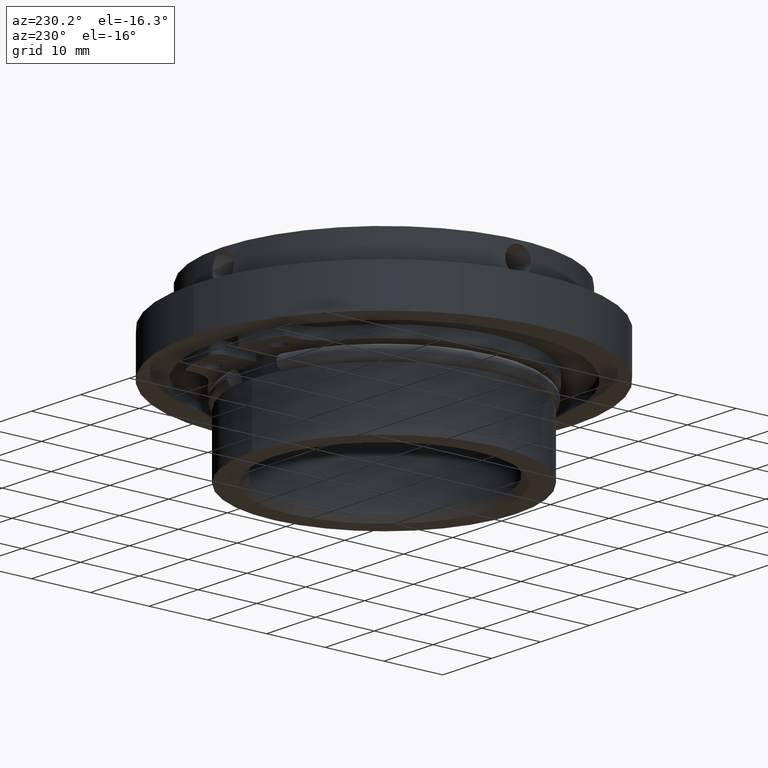
[diagram: clean part render]
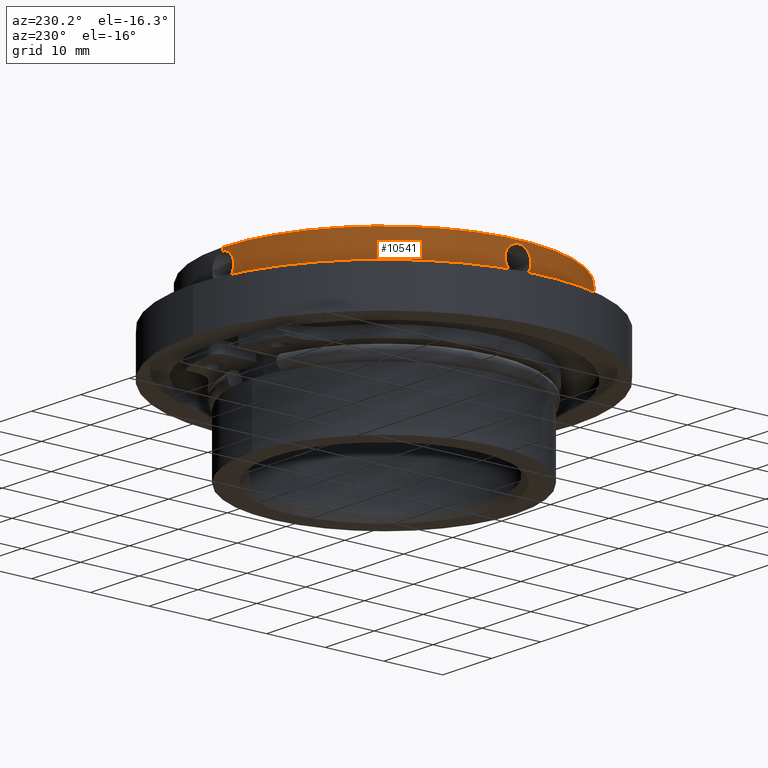
[diagram: same view with one face highlighted and labeled with its STEP entity id]
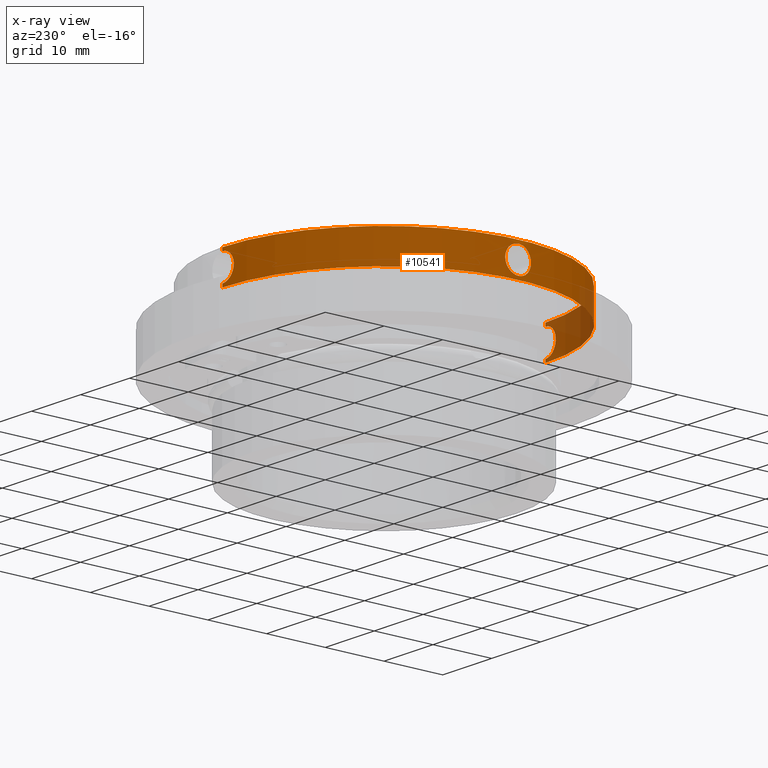
[diagram: x-ray of the same camera — body ghosted, the highlighted face saturated]
A machine part, auxiliary view. The second image highlights one B-rep face of the part: STEP entity #10541.
The next image is the same camera in x-ray: the body ghosted, the highlighted face saturated — about 12% of this face is hidden behind the body in this view.
In plain terms, the highlighted cylindrical surface (partial cylindrical patch) has radius 27.5 mm, axis along (-0, -0, 1).
Its self-contained STEP definition (entity closure, byte-faithful):
#78 = CARTESIAN_POINT ( 'NONE',  ( -27.46760607206279303, 1.339752003900576582, 12.50091533937346178 ) ) ;
#205 = EDGE_CURVE ( 'NONE', #15126, #2915, #16627, .T. ) ;
#735 = CARTESIAN_POINT ( 'NONE',  ( -1.102211121587606701, 27.47816321157248609, 8.840602214783354285 ) ) ;
#791 = CARTESIAN_POINT ( 'NONE',  ( -2.087956503690278520, 27.42067638091420534, 11.45797137967987744 ) ) ;
#849 = VECTOR ( 'NONE', #949, 1000.000000000000000 ) ;
#868 = CARTESIAN_POINT ( 'NONE',  ( -27.50000411988308358, -0.1427642548176980275, 8.549948501458123573 ) ) ;
#949 = DIRECTION ( 'NONE',  ( -0.000000000000000000, -1.836970198721029441E-16, 1.000000000000000000 ) ) ;
#1002 = CARTESIAN_POINT ( 'NONE',  ( -0.5700693947728147082, -27.49445680189563035, 12.87977522340081471 ) ) ;
#1021 = CYLINDRICAL_SURFACE ( 'NONE', #6357, 27.50000000000000355 ) ;
#1055 = CARTESIAN_POINT ( 'NONE',  ( -27.42071439213125217, 2.087460144524090566, 10.04055943237065129 ) ) ;
#1231 = CARTESIAN_POINT ( 'NONE',  ( -2.088078921349331818, -27.42066711140455126, 10.04236781854133298 ) ) ;
#1263 = CARTESIAN_POINT ( 'NONE',  ( -27.43289219616113783, -1.923149037076269607, 11.85616801572842149 ) ) ;
#1381 = CARTESIAN_POINT ( 'NONE',  ( -27.41298692999574982, -2.186079832941547618, 11.03631544758494876 ) ) ;
#1499 = CARTESIAN_POINT ( 'NONE',  ( -27.42070761496685449, -2.087537547147495953, 11.45902359883625365 ) ) ;
#1524 = CARTESIAN_POINT ( 'NONE',  ( -1.455335805502531832, -27.46165163692802125, 9.093924413810746898 ) ) ;
#1643 = VERTEX_POINT ( 'NONE', #4604 ) ;
#1672 = CARTESIAN_POINT ( 'NONE',  ( -27.43384442769084330, 1.908056495231678307, 11.85462775308173278 ) ) ;
#1798 = CARTESIAN_POINT ( 'NONE',  ( -27.41185874762965824, 2.199999999999902034, 10.74999999999999112 ) ) ;
#1923 = DIRECTION ( 'NONE',  ( -0.000000000000000000, -1.836970198721029441E-16, 1.000000000000000000 ) ) ;
#1924 = CARTESIAN_POINT ( 'NONE',  ( -1.922668897727070947, 27.43292634360357596, 9.642990827726121594 ) ) ;
#2105 = CARTESIAN_POINT ( 'NONE',  ( 0.000000000000000000, -4.959819536546779811E-15, 13.49999999999999822 ) ) ;
#2138 = ORIENTED_EDGE ( 'NONE', *, *, #5385, .F. ) ;
#2166 = CARTESIAN_POINT ( 'NONE',  ( -1.342061094036092417, 27.46749150623850966, 12.49911603992596554 ) ) ;
#2196 = CARTESIAN_POINT ( 'NONE',  ( -27.45023331888924290, 1.656809966927427658, 9.295502150329141955 ) ) ;
#2258 = CARTESIAN_POINT ( 'NONE',  ( 0.000000000000000000, -27.50000000000000711, 7.999999999999992895 ) ) ;
#2355 = ORIENTED_EDGE ( 'NONE', *, *, #9867, .F. ) ;
#2366 = CARTESIAN_POINT ( 'NONE',  ( -27.41185874762966179, 2.199999999999902478, 10.60457834185735670 ) ) ;
#2375 = CARTESIAN_POINT ( 'NONE',  ( -1.976416453588713873, -27.42894182432150529, 11.72700398450496273 ) ) ;
#2437 = CARTESIAN_POINT ( 'NONE',  ( -1.178873736762280042E-23, -27.50000000000000711, 12.94999999999998508 ) ) ;
#2540 = CARTESIAN_POINT ( 'NONE',  ( -27.44443409722021698, -1.749117100696933047, 9.407940309217440955 ) ) ;
#2550 = CARTESIAN_POINT ( 'NONE',  ( -2.130231953129908984, -27.41738302917717718, 10.18196987198513703 ) ) ;
#2567 = VERTEX_POINT ( 'NONE', #16776 ) ;
#2639 = CARTESIAN_POINT ( 'NONE',  ( -27.48296167340937401, -0.9770047894433698810, 12.72641607528670527 ) ) ;
#2691 = CARTESIAN_POINT ( 'NONE',  ( -27.41741881671063652, -2.129775314251042939, 11.32006901540635013 ) ) ;
#2744 = CARTESIAN_POINT ( 'NONE',  ( -27.44441276097223081, -1.759378472819521866, 12.10160882666580306 ) ) ;
#2861 = CARTESIAN_POINT ( 'NONE',  ( -27.49442964040789406, -0.5710637299513807719, 12.87942325830659840 ) ) ;
#2914 = CARTESIAN_POINT ( 'NONE',  ( -27.42892850488798828, 1.976592986737546020, 11.72652599331439305 ) ) ;
#2915 = VERTEX_POINT ( 'NONE', #17189 ) ;
#2970 = CARTESIAN_POINT ( 'NONE',  ( -27.41185874762966534, 2.199999999999902922, 11.04077602094674759 ) ) ;
#3522 = CARTESIAN_POINT ( 'NONE',  ( -27.47898619112024576, 1.107010207776211619, 8.827331620137696788 ) ) ;
#3716 = CARTESIAN_POINT ( 'NONE',  ( -1.977775658333616571, -27.42884361145306471, 9.775720609207821710 ) ) ;
#3767 = CARTESIAN_POINT ( 'NONE',  ( -27.42890037160281125, 1.976990651090154039, 9.774139487694604611 ) ) ;
#3778 = CARTESIAN_POINT ( 'NONE',  ( -1.656027431125970839, -27.45028055965169500, 12.20538238981605872 ) ) ;
#3942 = CARTESIAN_POINT ( 'NONE',  ( -27.47812298843149748, -1.103171243342534025, 8.841189723853160487 ) ) ;
#3979 = CARTESIAN_POINT ( 'NONE',  ( -27.50000918157873997, 0.1434796874053359539, 12.95011476977026099 ) ) ;
#4001 = CARTESIAN_POINT ( 'NONE',  ( 0.000000000000000000, -27.50000000000000711, 8.549999999999984723 ) ) ;
#4038 = CARTESIAN_POINT ( 'NONE',  ( -27.49886387191065040, 0.2868125127088385073, 12.93592886608588444 ) ) ;
#4125 = B_SPLINE_CURVE_WITH_KNOTS ( 'NONE', 3,
 ( #10161, #11477, #12695, #14164, #9979, #13975, #735, #4681, #6185, #8865, #1924, #6123, #15499, #4798, #14226, #15557, #791, #5931, #12762, #4614, #14037, #10227, #2166, #11582, #15380, #7276, #11343, #5996, #16733, #8682 ),
 .UNSPECIFIED., .F., .F.,
 ( 4, 2, 2, 2, 2, 2, 2, 2, 2, 2, 2, 2, 2, 2, 4 ),
 ( 0.000000000000000000, 0.0004300594246521893859, 0.0008601188493043787717, 0.001290178273956568266, 0.001720237698608757543, 0.002580356547913132629, 0.003440475397217508148, 0.003870534821869693522, 0.004300594246521878029, 0.004730653671174062970, 0.005160713095826247043, 0.005590772520478431984, 0.006020831945130616925, 0.006450891369782801865, 0.006880950794434985938 ),
 .UNSPECIFIED. ) ;
#4151 = CIRCLE ( 'NONE', #4281, 27.50000000000000355 ) ;
#4174 = ORIENTED_EDGE ( 'NONE', *, *, #14646, .T. ) ;
#4194 = CARTESIAN_POINT ( 'NONE',  ( -27.41185874762964048, -2.200000000000097877, 10.74999999999999112 ) ) ;
#4281 = AXIS2_PLACEMENT_3D ( 'NONE', #2105, #1923, #7329 ) ;
#4425 = CARTESIAN_POINT ( 'NONE',  ( -27.45027780006670071, 1.656076841807015532, 12.20533438329140452 ) ) ;
#4604 = CARTESIAN_POINT ( 'NONE',  ( -27.41185874762964048, -2.200000000000097877, 10.74999999999999112 ) ) ;
#4614 = CARTESIAN_POINT ( 'NONE',  ( -1.749540281690237231, 27.44440705808895942, 12.09151116448375873 ) ) ;
#4681 = CARTESIAN_POINT ( 'NONE',  ( -1.341330900993246367, 27.46752908895168588, 9.000285545358247319 ) ) ;
#4762 = CARTESIAN_POINT ( 'NONE',  ( 3.367778697655222096E-15, 27.50000000000000000, 13.50000000000000355 ) ) ;
#4798 = CARTESIAN_POINT ( 'NONE',  ( -2.200051511724993247, 27.41185461344127461, 10.89276396314325446 ) ) ;
#4815 = B_SPLINE_CURVE_WITH_KNOTS ( 'NONE', 3,
 ( #16751, #2366, #15826, #6265, #1055, #3767, #8887, #10248, #2196, #11605, #3522, #15647, #8953, #868, #10308, #14702, #6607, #13421, #3942, #15996, #12121, #9257, #2540, #17456, #6707, #15890, #13307, #7965, #16049, #8074 ),
 .UNSPECIFIED., .F., .F.,
 ( 4, 2, 2, 2, 2, 2, 2, 2, 2, 2, 2, 2, 2, 2, 4 ),
 ( 0.000000000000000000, 0.0004300593894160584783, 0.0008601187788321169566, 0.001290178168248175272, 0.001720237557664233913, 0.002580356336496350544, 0.003440475115328467826, 0.003870534504744525817, 0.004300593894160584241, 0.004730653283576643532, 0.005160712672992701089, 0.005590772062408758646, 0.006020831451824816202, 0.006450890841240874626, 0.006880950230656932183 ),
 .UNSPECIFIED. ) ;
#5012 = CARTESIAN_POINT ( 'NONE',  ( 0.000000000000000000, -27.50000000000000711, 13.49999999999999467 ) ) ;
#5347 = CARTESIAN_POINT ( 'NONE',  ( -27.49121764836407777, 0.7076327328848366349, 12.83807875078104033 ) ) ;
#5385 = EDGE_CURVE ( 'NONE', #1643, #9649, #8381, .T. ) ;
#5931 = CARTESIAN_POINT ( 'NONE',  ( -1.977704944055843406, 27.42884865798026794, 11.72440699402530484 ) ) ;
#5996 = CARTESIAN_POINT ( 'NONE',  ( -0.2894786117956304472, 27.49883800060477768, 12.93560705286438584 ) ) ;
#6123 = CARTESIAN_POINT ( 'NONE',  ( -2.142098664217697568, 27.41666494628081807, 10.17247224262181149 ) ) ;
#6185 = CARTESIAN_POINT ( 'NONE',  ( -1.454499141936519857, 27.46169610655971027, 9.093191162497397784 ) ) ;
#6265 = CARTESIAN_POINT ( 'NONE',  ( -27.41741710150834166, 2.129794901160621645, 10.18032020020438821 ) ) ;
#6357 = AXIS2_PLACEMENT_3D ( 'NONE', #8597, #15169, #11140 ) ;
#6389 = CARTESIAN_POINT ( 'NONE',  ( 0.000000000000000000, -27.50000000000000711, 13.49999999999999467 ) ) ;
#6443 = CARTESIAN_POINT ( 'NONE',  ( -1.910282046220560526, -27.43368732281611244, 9.649335464058960810 ) ) ;
#6498 = EDGE_CURVE ( 'NONE', #15051, #15569, #8995, .T. ) ;
#6512 = FACE_BOUND ( 'NONE', #17071, .T. ) ;
#6531 = VERTEX_POINT ( 'NONE', #2258 ) ;
#6607 = CARTESIAN_POINT ( 'NONE',  ( -27.49120840338270000, -0.7079718730853539199, 8.662043649290762204 ) ) ;
#6707 = CARTESIAN_POINT ( 'NONE',  ( -27.42887653974195672, -1.977320405754187993, 9.774801430572754413 ) ) ;
#6828 = CARTESIAN_POINT ( 'NONE',  ( 0.000000000000000000, -3.949485927250213261E-15, 7.999999999999998224 ) ) ;
#7149 = CARTESIAN_POINT ( 'NONE',  ( -27.44456030013204639, 1.747171887409913138, 12.09472021540494246 ) ) ;
#7261 = B_SPLINE_CURVE_WITH_KNOTS ( 'NONE', 3,
 ( #2437, #17124, #14598, #1002, #7974, #10442, #10615, #3778, #13142, #7918, #2375, #11784, #15951, #9324, #9263, #9140, #14483, #2550, #1231, #3716, #6443, #15836, #17191, #1524, #9474, #9422, #14818, #9588, #17463, #4001 ),
 .UNSPECIFIED., .F., .F.,
 ( 4, 2, 2, 2, 2, 2, 2, 2, 2, 2, 2, 2, 2, 2, 4 ),
 ( 0.006880950794434983336, 0.007310910723435553107, 0.007740870652436122011, 0.008600790510437258951, 0.009030750439437826987, 0.009460710368438395024, 0.009890670297438961325, 0.01032063022643952763, 0.01075059015544009566, 0.01118055008444066196, 0.01161051001344123000, 0.01204046994244179630, 0.01247042987144236434, 0.01290038980044293064, 0.01376030965844406671 ),
 .UNSPECIFIED. ) ;
#7276 = CARTESIAN_POINT ( 'NONE',  ( -0.7086600898671457927, 27.49119092278776577, 12.83772823574753374 ) ) ;
#7329 = DIRECTION ( 'NONE',  ( 0.000000000000000000, -1.000000000000000000, -1.892425610156516629E-16 ) ) ;
#7731 = CARTESIAN_POINT ( 'NONE',  ( 0.000000000000000000, 27.50000000000000000, 8.549999999999995381 ) ) ;
#7802 = EDGE_CURVE ( 'NONE', #15126, #2567, #7261, .T. ) ;
#7918 = CARTESIAN_POINT ( 'NONE',  ( -1.908786674296118813, -27.43379209288012888, 11.85327109933470169 ) ) ;
#7965 = CARTESIAN_POINT ( 'NONE',  ( -27.41302461379641286, -2.185607033293954338, 10.46052132605569795 ) ) ;
#7974 = CARTESIAN_POINT ( 'NONE',  ( -0.7090240329387849094, -27.49117724352910841, 12.83753741178530916 ) ) ;
#8074 = CARTESIAN_POINT ( 'NONE',  ( -27.41185874762964048, -2.200000000000097877, 10.74999999999999112 ) ) ;
#8139 = DIRECTION ( 'NONE',  ( -0.000000000000000000, -1.836970198721029441E-16, 1.000000000000000000 ) ) ;
#8202 = FACE_OUTER_BOUND ( 'NONE', #15323, .T. ) ;
#8381 = B_SPLINE_CURVE_WITH_KNOTS ( 'NONE', 3,
 ( #4194, #16040, #1381, #2691, #1499, #1263, #2744, #12107, #10923, #10703, #2639, #12162, #2861, #12269, #12047, #3979, #4038, #13460, #5347, #13513, #16200, #78, #16488, #4425, #7149, #1672, #2914, #11092, #2970, #1798 ),
 .UNSPECIFIED., .F., .F.,
 ( 4, 2, 2, 2, 2, 2, 2, 2, 2, 2, 2, 2, 2, 2, 4 ),
 ( 0.006880950230656932183, 0.007310910112913737713, 0.007740869995170542375, 0.008600789759684148231, 0.009030749641940951158, 0.009460709524197755821, 0.009890669406454558749, 0.01032062928871136168, 0.01075058917096816460, 0.01118054905322496753, 0.01161050893548177046, 0.01204046881773857512, 0.01247042869999537978, 0.01290038858225218271, 0.01376030834676578857 ),
 .UNSPECIFIED. ) ;
#8455 = ORIENTED_EDGE ( 'NONE', *, *, #11224, .F. ) ;
#8521 = CARTESIAN_POINT ( 'NONE',  ( 3.367778697655222096E-15, 27.50000000000000000, 13.50000000000000533 ) ) ;
#8597 = CARTESIAN_POINT ( 'NONE',  ( 0.000000000000000000, -4.959819536546779811E-15, 13.50000000000000000 ) ) ;
#8682 = CARTESIAN_POINT ( 'NONE',  ( 3.367778709443772504E-15, 27.50000000000000000, 12.94999999999999574 ) ) ;
#8687 = VECTOR ( 'NONE', #14243, 1000.000000000000000 ) ;
#8737 = VECTOR ( 'NONE', #12570, 1000.000000000000000 ) ;
#8865 = CARTESIAN_POINT ( 'NONE',  ( -1.758784986720331567, 27.44445223687677426, 9.397591599342018043 ) ) ;
#8887 = CARTESIAN_POINT ( 'NONE',  ( -27.43374930381573762, 1.909398371697086594, 9.647789915086269374 ) ) ;
#8890 = CARTESIAN_POINT ( 'NONE',  ( 3.367778697655222096E-15, 27.50000000000000000, 13.50000000000000533 ) ) ;
#8953 = CARTESIAN_POINT ( 'NONE',  ( -27.49999172607126141, 0.2879027095623558630, 8.550103424115953032 ) ) ;
#8995 = LINE ( 'NONE', #8890, #12149 ) ;
#9140 = CARTESIAN_POINT ( 'NONE',  ( -2.200114791405631376, -27.41184953479173458, 10.60652072448203498 ) ) ;
#9257 = CARTESIAN_POINT ( 'NONE',  ( -27.45016203307449842, -1.658068316422440791, 9.296760100592216247 ) ) ;
#9263 = CARTESIAN_POINT ( 'NONE',  ( -2.199883817413634368, -27.41186807211988352, 10.89697818799610118 ) ) ;
#9324 = CARTESIAN_POINT ( 'NONE',  ( -2.185530516938213985, -27.41303062849256378, 11.03985084536642169 ) ) ;
#9422 = CARTESIAN_POINT ( 'NONE',  ( -1.104628818210277252, -27.47806825363796435, 8.841944100332321810 ) ) ;
#9474 = CARTESIAN_POINT ( 'NONE',  ( -1.344721633452232057, -27.46736542710517526, 9.002829180989213143 ) ) ;
#9530 = DIRECTION ( 'NONE',  ( 0.000000000000000000, -1.000000000000000000, -1.892425610156516629E-16 ) ) ;
#9588 = CARTESIAN_POINT ( 'NONE',  ( -0.5796558565229619209, -27.49516444862884867, 8.608483996799055404 ) ) ;
#9649 = VERTEX_POINT ( 'NONE', #12951 ) ;
#9867 = EDGE_CURVE ( 'NONE', #15569, #14273, #4125, .T. ) ;
#9901 = AXIS2_PLACEMENT_3D ( 'NONE', #6828, #8139, #9530 ) ;
#9979 = CARTESIAN_POINT ( 'NONE',  ( -0.7094409426209696834, 27.49117049499654186, 8.662539964140707482 ) ) ;
#9998 = CIRCLE ( 'NONE', #9901, 27.50000000000000355 ) ;
#10161 = CARTESIAN_POINT ( 'NONE',  ( 0.000000000000000000, 27.50000000000000000, 8.549999999999995381 ) ) ;
#10227 = CARTESIAN_POINT ( 'NONE',  ( -1.453241132598171337, 27.46176739574552172, 12.40806724435773667 ) ) ;
#10248 = CARTESIAN_POINT ( 'NONE',  ( -27.44439649823913641, 1.749715363677741164, 9.408670301814236581 ) ) ;
#10308 = CARTESIAN_POINT ( 'NONE',  ( -27.49884789300027421, -0.2885840098966692135, 8.564268938050958013 ) ) ;
#10442 = CARTESIAN_POINT ( 'NONE',  ( -1.106168890686377582, -27.47902028171577982, 12.67314858625904606 ) ) ;
#10541 = ADVANCED_FACE ( 'NONE', ( #8202, #6512 ), #1021, .T. ) ;
#10615 = CARTESIAN_POINT ( 'NONE',  ( -1.351610242255328442, -27.46751660376238391, 12.50937738019565160 ) ) ;
#10639 = ORIENTED_EDGE ( 'NONE', *, *, #6498, .F. ) ;
#10703 = CARTESIAN_POINT ( 'NONE',  ( -27.47812049394401512, -1.103272108470920942, 12.65878610486299216 ) ) ;
#10923 = CARTESIAN_POINT ( 'NONE',  ( -27.46748024403858324, -1.342327928781096524, 12.49895096302389064 ) ) ;
#11092 = CARTESIAN_POINT ( 'NONE',  ( -27.41671140611661528, 2.141515986310285058, 11.32965565962346588 ) ) ;
#11140 = DIRECTION ( 'NONE',  ( 0.000000000000000000, -1.000000000000000000, -1.892425610156516629E-16 ) ) ;
#11196 = ORIENTED_EDGE ( 'NONE', *, *, #14679, .F. ) ;
#11224 = EDGE_CURVE ( 'NONE', #16898, #2915, #4151, .T. ) ;
#11343 = CARTESIAN_POINT ( 'NONE',  ( -0.5715025558173010278, 27.49442259948163425, 12.87933343676183817 ) ) ;
#11477 = CARTESIAN_POINT ( 'NONE',  ( -0.1454216256827804976, 27.50000000000000711, 8.550000000000000711 ) ) ;
#11582 = CARTESIAN_POINT ( 'NONE',  ( -1.103821650180352609, 27.47809664787579464, 12.65843199141200159 ) ) ;
#11605 = CARTESIAN_POINT ( 'NONE',  ( -27.46747716078295909, 1.352409898564244095, 8.991216184093321573 ) ) ;
#11784 = CARTESIAN_POINT ( 'NONE',  ( -2.086957571170081849, -27.42075271935775049, 11.46089160910129934 ) ) ;
#12047 = CARTESIAN_POINT ( 'NONE',  ( -27.49999070716916449, -0.1469779344748581851, 12.94988383957807443 ) ) ;
#12107 = CARTESIAN_POINT ( 'NONE',  ( -27.46164888377185775, -1.455383690213944314, 12.40602628964482967 ) ) ;
#12121 = CARTESIAN_POINT ( 'NONE',  ( -27.46180043711099472, -1.452619336322766408, 9.091387986629824169 ) ) ;
#12149 = VECTOR ( 'NONE', #16227, 1000.000000000000000 ) ;
#12162 = CARTESIAN_POINT ( 'NONE',  ( -27.49113226730171888, -0.7108919484749818274, 12.83695747413318777 ) ) ;
#12269 = CARTESIAN_POINT ( 'NONE',  ( -27.49883200424046237, -0.2898507160013809592, 12.93553054408226188 ) ) ;
#12315 = LINE ( 'NONE', #8521, #8737 ) ;
#12570 = DIRECTION ( 'NONE',  ( -0.000000000000000000, -1.836970198721029441E-16, 1.000000000000000000 ) ) ;
#12695 = CARTESIAN_POINT ( 'NONE',  ( -0.2884013015018351278, 27.49884741100790464, 8.564276752491116085 ) ) ;
#12762 = CARTESIAN_POINT ( 'NONE',  ( -1.908810927302657445, 27.43378958166643855, 11.85317008910742942 ) ) ;
#12792 = EDGE_CURVE ( 'NONE', #9649, #1643, #4815, .T. ) ;
#12951 = CARTESIAN_POINT ( 'NONE',  ( -27.41185874762965824, 2.199999999999902034, 10.74999999999999112 ) ) ;
#13142 = CARTESIAN_POINT ( 'NONE',  ( -1.748951882275132874, -27.44444538475551099, 12.09232671137987047 ) ) ;
#13307 = CARTESIAN_POINT ( 'NONE',  ( -27.41745311718513634, -2.129333498432634642, 10.17849771732285902 ) ) ;
#13421 = CARTESIAN_POINT ( 'NONE',  ( -27.48305465233702094, -0.9744078345107477501, 8.772295454929848191 ) ) ;
#13460 = CARTESIAN_POINT ( 'NONE',  ( -27.49449248556643255, 0.5680304784512067995, 12.88023186545134635 ) ) ;
#13513 = CARTESIAN_POINT ( 'NONE',  ( -27.48305968588604742, 0.9742803376853099717, 12.72777520909559712 ) ) ;
#13749 = CARTESIAN_POINT ( 'NONE',  ( 3.367778697655222096E-15, 27.50000000000000000, 8.000000000000003553 ) ) ;
#13949 = CARTESIAN_POINT ( 'NONE',  ( 3.367778709443772504E-15, 27.50000000000000000, 12.94999999999999574 ) ) ;
#13975 = CARTESIAN_POINT ( 'NONE',  ( -0.9758613563732341234, 27.48300304277486461, 8.773009745721031649 ) ) ;
#14037 = CARTESIAN_POINT ( 'NONE',  ( -1.658613226773502758, 27.45012896966932203, 12.20261796087590156 ) ) ;
#14072 = ORIENTED_EDGE ( 'NONE', *, *, #205, .T. ) ;
#14161 = CARTESIAN_POINT ( 'NONE',  ( -1.178873736762280042E-23, -27.50000000000000711, 12.94999999999998508 ) ) ;
#14164 = CARTESIAN_POINT ( 'NONE',  ( -0.5696800173530167655, 27.49445851298826682, 8.620205149964579761 ) ) ;
#14177 = ORIENTED_EDGE ( 'NONE', *, *, #12792, .F. ) ;
#14226 = CARTESIAN_POINT ( 'NONE',  ( -2.185731101965954881, 27.41301468527233709, 11.03858369361415193 ) ) ;
#14243 = DIRECTION ( 'NONE',  ( -0.000000000000000000, -1.836970198721029441E-16, 1.000000000000000000 ) ) ;
#14273 = VERTEX_POINT ( 'NONE', #13949 ) ;
#14371 = ORIENTED_EDGE ( 'NONE', *, *, #7802, .F. ) ;
#14483 = CARTESIAN_POINT ( 'NONE',  ( -2.185928885302752978, -27.41299865485619236, 10.46318767657698956 ) ) ;
#14598 = CARTESIAN_POINT ( 'NONE',  ( -0.2863155240094575893, -27.49887556550036294, 12.93607983335005862 ) ) ;
#14646 = EDGE_CURVE ( 'NONE', #15051, #6531, #9998, .T. ) ;
#14679 = EDGE_CURVE ( 'NONE', #14273, #16898, #12315, .T. ) ;
#14702 = CARTESIAN_POINT ( 'NONE',  ( -27.49443770641144980, -0.5707988975059541392, 8.620471971411745926 ) ) ;
#14818 = CARTESIAN_POINT ( 'NONE',  ( -0.9765268643920952396, -27.48297495769712384, 8.773407424603551164 ) ) ;
#15051 = VERTEX_POINT ( 'NONE', #13749 ) ;
#15126 = VERTEX_POINT ( 'NONE', #14161 ) ;
#15169 = DIRECTION ( 'NONE',  ( -0.000000000000000000, -1.836970198721029441E-16, 1.000000000000000000 ) ) ;
#15323 = EDGE_LOOP ( 'NONE', ( #10639, #4174, #15619, #14371, #14072, #8455, #11196, #2355 ) ) ;
#15380 = CARTESIAN_POINT ( 'NONE',  ( -0.9751994904324216007, 27.48302682438744426, 12.72731996985019265 ) ) ;
#15499 = CARTESIAN_POINT ( 'NONE',  ( -2.199896549297987391, 27.41186705029645054, 10.46209726286469355 ) ) ;
#15557 = CARTESIAN_POINT ( 'NONE',  ( -2.129528123131891881, 27.41743796487643792, 11.32079853811275072 ) ) ;
#15569 = VERTEX_POINT ( 'NONE', #7731 ) ;
#15619 = ORIENTED_EDGE ( 'NONE', *, *, #16956, .T. ) ;
#15647 = CARTESIAN_POINT ( 'NONE',  ( -27.49521076905072903, 0.5775278845001352579, 8.607901299737109824 ) ) ;
#15826 = CARTESIAN_POINT ( 'NONE',  ( -27.41301517064546900, 2.185723242556917079, 10.46159871315922985 ) ) ;
#15836 = CARTESIAN_POINT ( 'NONE',  ( -1.750916282661120871, -27.44431944489179998, 9.410249244111774658 ) ) ;
#15890 = CARTESIAN_POINT ( 'NONE',  ( -27.42069390813535890, -2.087728386492444521, 10.04134040537185157 ) ) ;
#15951 = CARTESIAN_POINT ( 'NONE',  ( -2.129423293301580422, -27.41744605752118602, 11.32106356123682822 ) ) ;
#15996 = CARTESIAN_POINT ( 'NONE',  ( -27.46751852298029561, -1.341512560224345840, 9.000460771168008023 ) ) ;
#16040 = CARTESIAN_POINT ( 'NONE',  ( -27.41185874762965113, -2.200000000000097433, 10.89357852145432126 ) ) ;
#16045 = LINE ( 'NONE', #5012, #8687 ) ;
#16049 = CARTESIAN_POINT ( 'NONE',  ( -27.41185874762963692, -2.200000000000097433, 10.60638824965294091 ) ) ;
#16200 = CARTESIAN_POINT ( 'NONE',  ( -27.47822508620350490, 1.100665650373730653, 12.66028141479110936 ) ) ;
#16227 = DIRECTION ( 'NONE',  ( -0.000000000000000000, -1.836970198721029441E-16, 1.000000000000000000 ) ) ;
#16488 = CARTESIAN_POINT ( 'NONE',  ( -27.46177517645648791, 1.453012720027873739, 12.40811420251951169 ) ) ;
#16627 = LINE ( 'NONE', #6389, #849 ) ;
#16733 = CARTESIAN_POINT ( 'NONE',  ( -0.1436117447040820561, 27.50000000000000355, 12.94999999999999574 ) ) ;
#16751 = CARTESIAN_POINT ( 'NONE',  ( -27.41185874762965824, 2.199999999999902034, 10.74999999999999112 ) ) ;
#16776 = CARTESIAN_POINT ( 'NONE',  ( 0.000000000000000000, -27.50000000000000711, 8.549999999999984723 ) ) ;
#16898 = VERTEX_POINT ( 'NONE', #4762 ) ;
#16956 = EDGE_CURVE ( 'NONE', #6531, #2567, #16045, .T. ) ;
#17071 = EDGE_LOOP ( 'NONE', ( #14177, #2138 ) ) ;
#17124 = CARTESIAN_POINT ( 'NONE',  ( -0.1435785196581960133, -27.50000000000000355, 12.94999999999998508 ) ) ;
#17189 = CARTESIAN_POINT ( 'NONE',  ( 0.000000000000000000, -27.50000000000000711, 13.49999999999999289 ) ) ;
#17191 = CARTESIAN_POINT ( 'NONE',  ( -1.658115361540354771, -27.45015421418600354, 9.296988609207186727 ) ) ;
#17456 = CARTESIAN_POINT ( 'NONE',  ( -27.43381596322134186, -1.908432667063818755, 9.646179543196662820 ) ) ;
#17463 = CARTESIAN_POINT ( 'NONE',  ( -0.2907759638300366212, -27.50000000000000711, 8.549999999999982947 ) ) ;